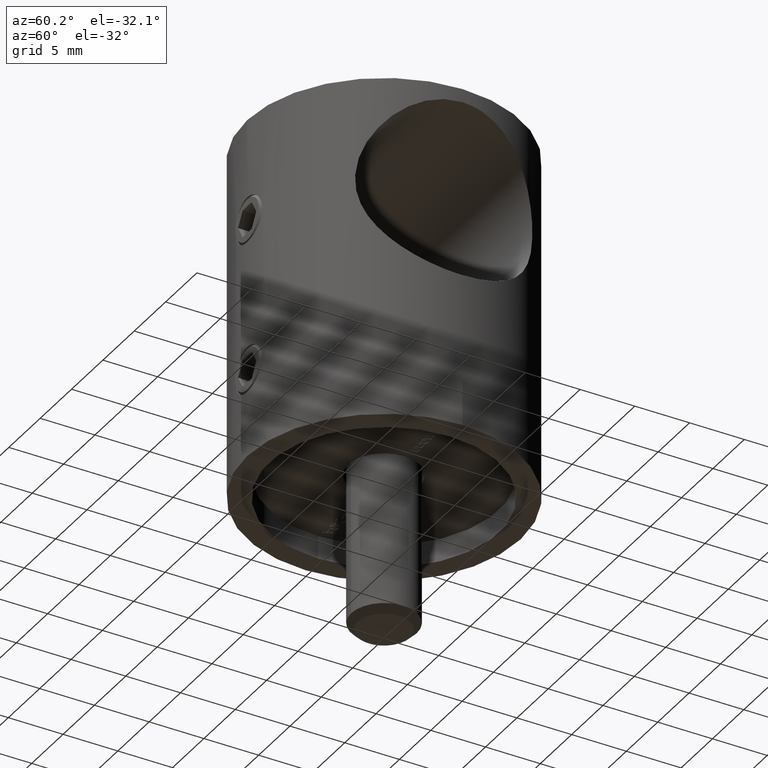
[diagram: clean part render]
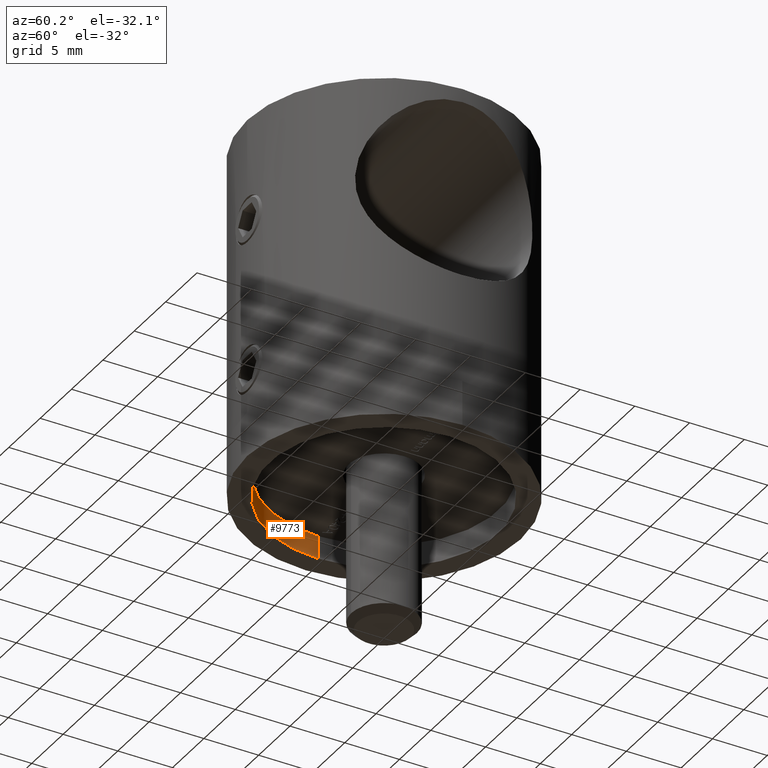
[diagram: same view with one face highlighted and labeled with its STEP entity id]
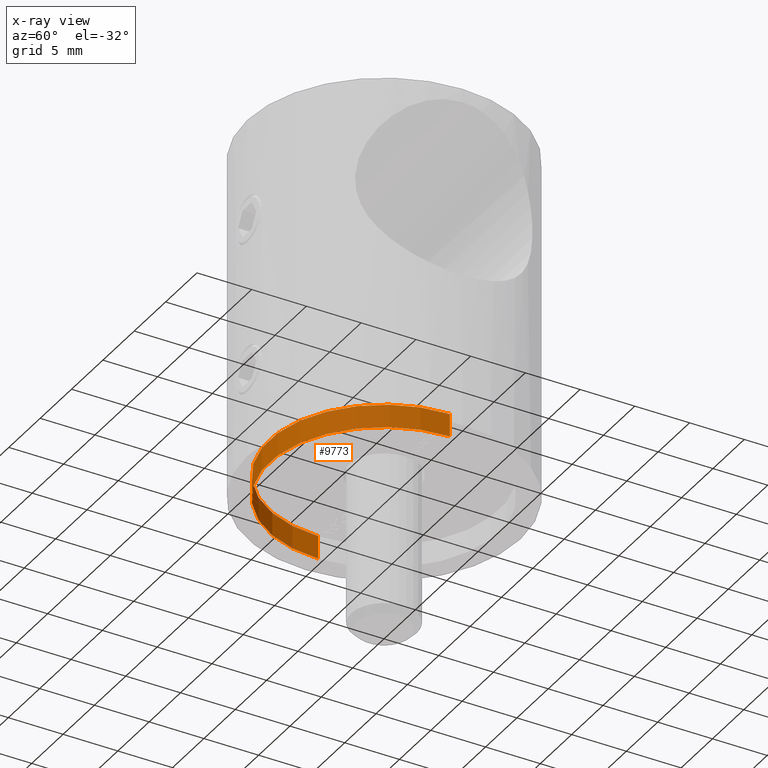
[diagram: x-ray of the same camera — body ghosted, the highlighted face saturated]
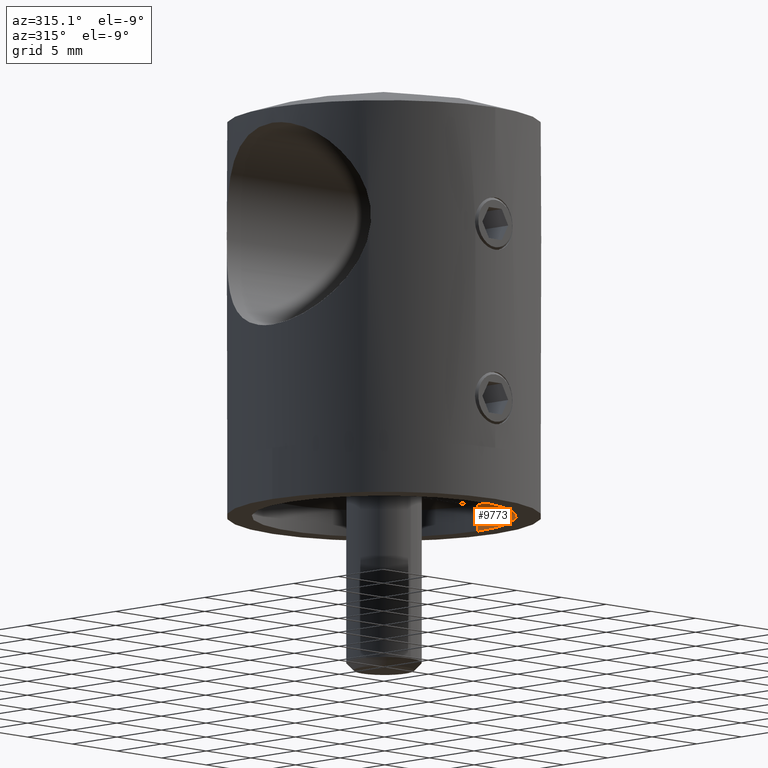
[diagram: same view with one face highlighted and labeled with its STEP entity id]
A machine part, auxiliary view. The second image highlights one B-rep face of the part: STEP entity #9773.
The next image is the same camera in x-ray: the body ghosted, the highlighted face saturated — about 0% of this face is hidden behind the body in this view.
A second angle (auxiliary view) of the same face is appended — the face is thin or edge-on in the first view.
In plain terms, the highlighted cylindrical surface (partial cylindrical patch) has radius 10.5 mm, axis along (-0, -0, -1).
Its self-contained STEP definition (entity closure, byte-faithful):
#426 = EDGE_CURVE ( 'NONE', #19697, #9020, #8201, .T. ) ;
#427 = CARTESIAN_POINT ( 'NONE',  ( 10.50000000000000000, 1.285879139104720831E-15, -9.500000000000000000 ) ) ;
#615 = DIRECTION ( 'NONE',  ( -0.000000000000000000, -0.000000000000000000, -1.000000000000000000 ) ) ;
#885 = EDGE_CURVE ( 'NONE', #6771, #8510, #6028, .T. ) ;
#2210 = DIRECTION ( 'NONE',  ( -1.000000000000000000, 0.000000000000000000, 0.000000000000000000 ) ) ;
#2642 = AXIS2_PLACEMENT_3D ( 'NONE', #9944, #16178, #8909 ) ;
#2873 = ORIENTED_EDGE ( 'NONE', *, *, #885, .F. ) ;
#3185 = CARTESIAN_POINT ( 'NONE',  ( 10.50000000000000000, 1.285879139104720831E-15, -11.59999999999999964 ) ) ;
#3547 = EDGE_CURVE ( 'NONE', #9020, #8510, #3583, .T. ) ;
#3583 = CIRCLE ( 'NONE', #2642, 10.50000000000000000 ) ;
#3761 = CARTESIAN_POINT ( 'NONE',  ( 0.000000000000000000, 0.000000000000000000, -9.500000000000000000 ) ) ;
#4294 = CARTESIAN_POINT ( 'NONE',  ( -10.50000000000000000, 0.000000000000000000, -11.59999999999999964 ) ) ;
#5293 = CARTESIAN_POINT ( 'NONE',  ( -10.50000000000000000, 0.000000000000000000, -11.14285714285700912 ) ) ;
#5800 = VECTOR ( 'NONE', #19211, 1000.000000000000000 ) ;
#5866 = FACE_OUTER_BOUND ( 'NONE', #13989, .T. ) ;
#6028 = LINE ( 'NONE', #5293, #17379 ) ;
#6771 = VERTEX_POINT ( 'NONE', #16328 ) ;
#8201 = LINE ( 'NONE', #16257, #5800 ) ;
#8510 = VERTEX_POINT ( 'NONE', #4294 ) ;
#8909 = DIRECTION ( 'NONE',  ( -1.000000000000000000, 0.000000000000000000, 0.000000000000000000 ) ) ;
#9020 = VERTEX_POINT ( 'NONE', #3185 ) ;
#9773 = ADVANCED_FACE ( 'NONE', ( #5866 ), #17911, .F. ) ;
#9944 = CARTESIAN_POINT ( 'NONE',  ( 0.000000000000000000, 0.000000000000000000, -11.59999999999999964 ) ) ;
#11378 = CARTESIAN_POINT ( 'NONE',  ( 0.000000000000000000, 0.000000000000000000, -11.14285714285700912 ) ) ;
#11706 = ORIENTED_EDGE ( 'NONE', *, *, #16289, .F. ) ;
#13989 = EDGE_LOOP ( 'NONE', ( #11706, #18428, #15620, #2873 ) ) ;
#14427 = DIRECTION ( 'NONE',  ( -0.000000000000000000, -0.000000000000000000, -1.000000000000000000 ) ) ;
#15258 = AXIS2_PLACEMENT_3D ( 'NONE', #3761, #19130, #15916 ) ;
#15620 = ORIENTED_EDGE ( 'NONE', *, *, #3547, .T. ) ;
#15916 = DIRECTION ( 'NONE',  ( -1.000000000000000000, 0.000000000000000000, 0.000000000000000000 ) ) ;
#16178 = DIRECTION ( 'NONE',  ( -0.000000000000000000, -0.000000000000000000, -1.000000000000000000 ) ) ;
#16257 = CARTESIAN_POINT ( 'NONE',  ( 10.50000000000000000, 1.285879139104720831E-15, -11.14285714285700912 ) ) ;
#16289 = EDGE_CURVE ( 'NONE', #19697, #6771, #16991, .T. ) ;
#16328 = CARTESIAN_POINT ( 'NONE',  ( -10.50000000000000000, 0.000000000000000000, -9.500000000000000000 ) ) ;
#16991 = CIRCLE ( 'NONE', #15258, 10.50000000000000000 ) ;
#17379 = VECTOR ( 'NONE', #615, 1000.000000000000000 ) ;
#17911 = CYLINDRICAL_SURFACE ( 'NONE', #18033, 10.50000000000000000 ) ;
#18033 = AXIS2_PLACEMENT_3D ( 'NONE', #11378, #14427, #2210 ) ;
#18428 = ORIENTED_EDGE ( 'NONE', *, *, #426, .T. ) ;
#19130 = DIRECTION ( 'NONE',  ( -0.000000000000000000, -0.000000000000000000, -1.000000000000000000 ) ) ;
#19211 = DIRECTION ( 'NONE',  ( -0.000000000000000000, -0.000000000000000000, -1.000000000000000000 ) ) ;
#19697 = VERTEX_POINT ( 'NONE', #427 ) ;